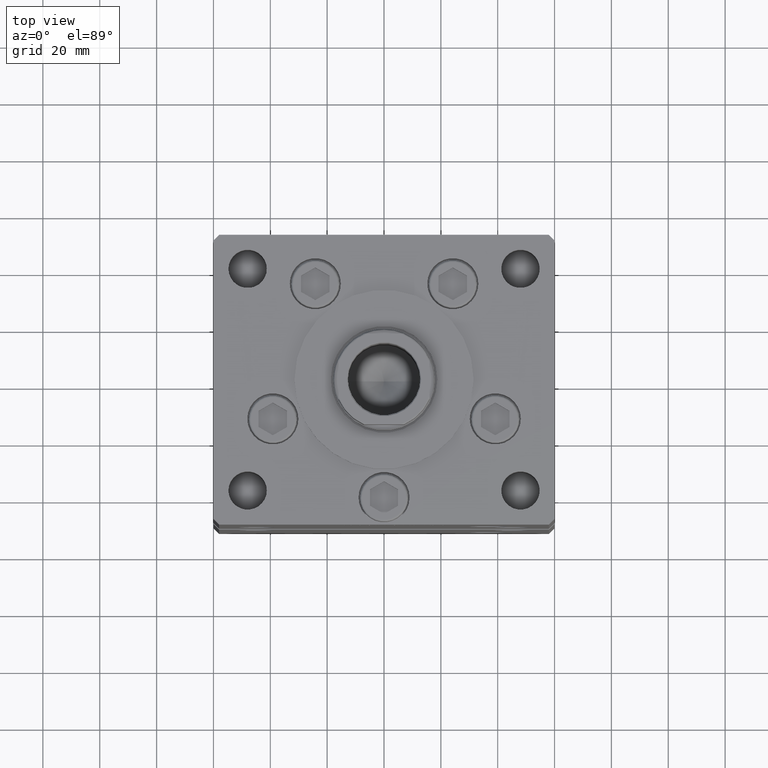
[diagram: clean part render]
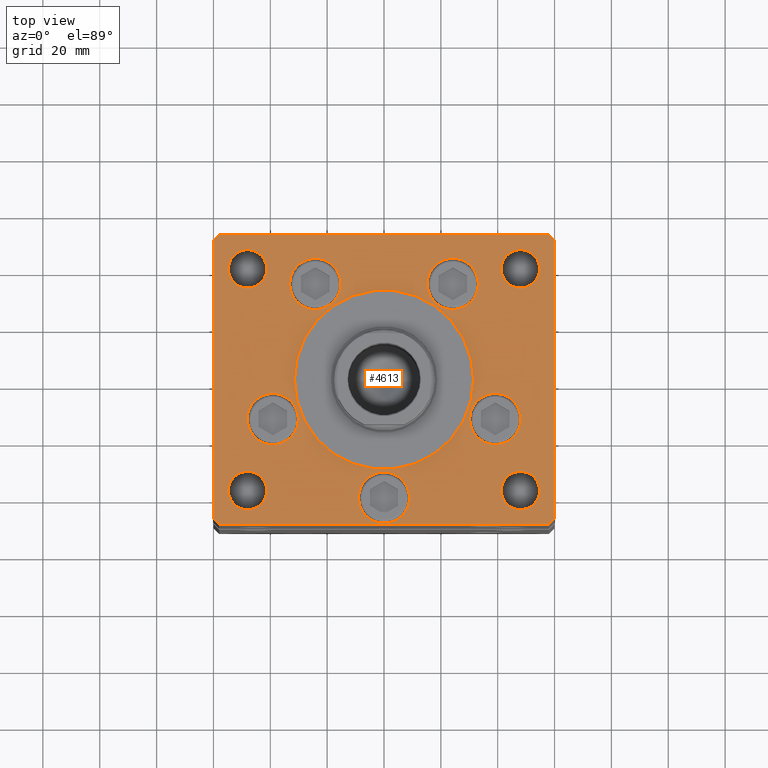
[diagram: same view with one face highlighted and labeled with its STEP entity id]
A machine part, top view. The second image highlights one B-rep face of the part: STEP entity #4613.
In plain terms, the highlighted planar face has unit normal (0, 0, 1).
Its self-contained STEP definition (entity closure, byte-faithful):
#27 = VECTOR ( 'NONE', #14591, 1000.000000000000114 ) ;
#181 = CARTESIAN_POINT ( 'NONE',  ( 60.00000000000001421, 49.00000000000002842, 0.000000000000000000 ) ) ;
#208 = DIRECTION ( 'NONE',  ( -0.000000000000000000, -0.000000000000000000, -1.000000000000000000 ) ) ;
#381 = DIRECTION ( 'NONE',  ( 0.000000000000000000, 0.000000000000000000, 1.000000000000000000 ) ) ;
#537 = CARTESIAN_POINT ( 'NONE',  ( 48.00000000000000000, 39.00000000000000000, 0.000000000000000000 ) ) ;
#765 = VECTOR ( 'NONE', #25288, 1000.000000000000000 ) ;
#964 = AXIS2_PLACEMENT_3D ( 'NONE', #23474, #27243, #22706 ) ;
#1248 = VERTEX_POINT ( 'NONE', #14520 ) ;
#1383 = CARTESIAN_POINT ( 'NONE',  ( -48.00000000000000000, 39.00000000000000711, 0.000000000000000000 ) ) ;
#1648 = DIRECTION ( 'NONE',  ( 1.000000000000000000, 0.000000000000000000, 0.000000000000000000 ) ) ;
#1738 = EDGE_CURVE ( 'NONE', #6328, #43750, #11886, .T. ) ;
#1817 = AXIS2_PLACEMENT_3D ( 'NONE', #15088, #27167, #39745 ) ;
#2166 = DIRECTION ( 'NONE',  ( 1.000000000000000000, 0.000000000000000000, 0.000000000000000000 ) ) ;
#2235 = DIRECTION ( 'NONE',  ( 1.000000000000000000, 0.000000000000000000, 0.000000000000000000 ) ) ;
#2573 = DIRECTION ( 'NONE',  ( 1.000000000000000000, 0.000000000000000000, 0.000000000000000000 ) ) ;
#2611 = DIRECTION ( 'NONE',  ( 0.000000000000000000, 0.000000000000000000, 1.000000000000000000 ) ) ;
#2787 = VERTEX_POINT ( 'NONE', #43143 ) ;
#2992 = EDGE_CURVE ( 'NONE', #33867, #47393, #37665, .T. ) ;
#3180 = VERTEX_POINT ( 'NONE', #31270 ) ;
#3598 = VERTEX_POINT ( 'NONE', #37267 ) ;
#3613 = EDGE_CURVE ( 'NONE', #26165, #24184, #16322, .T. ) ;
#3851 = EDGE_CURVE ( 'NONE', #7730, #45765, #46292, .T. ) ;
#3981 = DIRECTION ( 'NONE',  ( 1.000000000000000000, 0.000000000000000000, 0.000000000000000000 ) ) ;
#4077 = ORIENTED_EDGE ( 'NONE', *, *, #24268, .T. ) ;
#4111 = ORIENTED_EDGE ( 'NONE', *, *, #18809, .F. ) ;
#4331 = EDGE_CURVE ( 'NONE', #40238, #26209, #19608, .T. ) ;
#4400 = CARTESIAN_POINT ( 'NONE',  ( -58.00000000000000711, -51.00000000000002842, 0.000000000000000000 ) ) ;
#4613 = ADVANCED_FACE ( 'NONE', ( #31968, #20179, #16156, #39478, #7558, #19911, #48328, #7041, #27699, #11597, #31435 ), #35718, .T. ) ;
#4660 = ORIENTED_EDGE ( 'NONE', *, *, #5966, .F. ) ;
#4819 = DIRECTION ( 'NONE',  ( 0.7071067811865474617, 0.7071067811865474617, 0.000000000000000000 ) ) ;
#4916 = DIRECTION ( 'NONE',  ( 1.000000000000000000, 0.000000000000000000, 0.000000000000000000 ) ) ;
#5086 = CARTESIAN_POINT ( 'NONE',  ( 60.00000000000001421, -48.99999999999992895, 0.000000000000000000 ) ) ;
#5121 = EDGE_LOOP ( 'NONE', ( #33469, #12179, #51882, #16606, #46560, #34113, #12789, #44749 ) ) ;
#5966 = EDGE_CURVE ( 'NONE', #34673, #6267, #24967, .T. ) ;
#6220 = CARTESIAN_POINT ( 'NONE',  ( 60.00000000000001421, -48.99999999999992895, 0.000000000000000000 ) ) ;
#6267 = VERTEX_POINT ( 'NONE', #42792 ) ;
#6272 = EDGE_CURVE ( 'NONE', #26209, #3180, #10861, .T. ) ;
#6328 = VERTEX_POINT ( 'NONE', #40058 ) ;
#6482 = EDGE_LOOP ( 'NONE', ( #4660, #37126 ) ) ;
#6642 = AXIS2_PLACEMENT_3D ( 'NONE', #25524, #38374, #1648 ) ;
#7008 = DIRECTION ( 'NONE',  ( 0.000000000000000000, 1.000000000000000000, 0.000000000000000000 ) ) ;
#7041 = FACE_BOUND ( 'NONE', #32353, .T. ) ;
#7186 = DIRECTION ( 'NONE',  ( 1.000000000000000000, 0.000000000000000000, 0.000000000000000000 ) ) ;
#7276 = AXIS2_PLACEMENT_3D ( 'NONE', #18490, #19005, #7186 ) ;
#7313 = ORIENTED_EDGE ( 'NONE', *, *, #3851, .F. ) ;
#7324 = DIRECTION ( 'NONE',  ( -0.7071067811865536790, -0.7071067811865414665, 0.000000000000000000 ) ) ;
#7498 = CARTESIAN_POINT ( 'NONE',  ( 30.12657522565563539, -13.83333333333332682, 0.000000000000000000 ) ) ;
#7558 = FACE_BOUND ( 'NONE', #44476, .T. ) ;
#7730 = VERTEX_POINT ( 'NONE', #7498 ) ;
#7878 = VERTEX_POINT ( 'NONE', #14973 ) ;
#8289 = CARTESIAN_POINT ( 'NONE',  ( 48.00000000000000000, -39.00000000000001421, 0.000000000000000000 ) ) ;
#8450 = EDGE_CURVE ( 'NONE', #47393, #33867, #36966, .T. ) ;
#8547 = AXIS2_PLACEMENT_3D ( 'NONE', #18158, #47101, #38794 ) ;
#8870 = CARTESIAN_POINT ( 'NONE',  ( 31.50000000000000000, -3.081256486593065689E-15, 0.000000000000000000 ) ) ;
#8920 = CARTESIAN_POINT ( 'NONE',  ( 58.00000000000000000, 51.00000000000000711, 0.000000000000000000 ) ) ;
#9491 = ORIENTED_EDGE ( 'NONE', *, *, #3613, .F. ) ;
#9655 = DIRECTION ( 'NONE',  ( 0.000000000000000000, 0.000000000000000000, 1.000000000000000000 ) ) ;
#9674 = AXIS2_PLACEMENT_3D ( 'NONE', #35829, #11976, #40644 ) ;
#9701 = CARTESIAN_POINT ( 'NONE',  ( 48.00000000000000000, -39.00000000000001421, 0.000000000000000000 ) ) ;
#9743 = LINE ( 'NONE', #51027, #21548 ) ;
#9748 = ORIENTED_EDGE ( 'NONE', *, *, #22622, .F. ) ;
#9961 = ORIENTED_EDGE ( 'NONE', *, *, #52129, .F. ) ;
#10002 = ORIENTED_EDGE ( 'NONE', *, *, #38437, .F. ) ;
#10102 = CIRCLE ( 'NONE', #6642, 9.000000000000001776 ) ;
#10105 = AXIS2_PLACEMENT_3D ( 'NONE', #23398, #19636, #2235 ) ;
#10143 = CIRCLE ( 'NONE', #30582, 6.749999999999999112 ) ;
#10472 = DIRECTION ( 'NONE',  ( 0.000000000000000000, 0.000000000000000000, 1.000000000000000000 ) ) ;
#10861 = LINE ( 'NONE', #27490, #16394 ) ;
#10914 = VERTEX_POINT ( 'NONE', #28975 ) ;
#10920 = CARTESIAN_POINT ( 'NONE',  ( 0.000000000000000000, -6.938893903907228378E-15, 0.000000000000000000 ) ) ;
#11060 = ORIENTED_EDGE ( 'NONE', *, *, #46548, .F. ) ;
#11597 = FACE_OUTER_BOUND ( 'NONE', #5121, .T. ) ;
#11859 = CIRCLE ( 'NONE', #25573, 6.749999999999999112 ) ;
#11886 = LINE ( 'NONE', #28507, #19718 ) ;
#11976 = DIRECTION ( 'NONE',  ( 0.000000000000000000, 0.000000000000000000, 1.000000000000000000 ) ) ;
#12116 = AXIS2_PLACEMENT_3D ( 'NONE', #41374, #24250, #4916 ) ;
#12179 = ORIENTED_EDGE ( 'NONE', *, *, #42112, .T. ) ;
#12234 = CIRCLE ( 'NONE', #9674, 6.749999999999999112 ) ;
#12562 = CARTESIAN_POINT ( 'NONE',  ( 54.75000000000000000, -39.00000000000001421, 0.000000000000000000 ) ) ;
#12774 = CARTESIAN_POINT ( 'NONE',  ( -33.19288941894913592, 33.71874999999998579, 0.000000000000000000 ) ) ;
#12789 = ORIENTED_EDGE ( 'NONE', *, *, #1738, .T. ) ;
#12868 = DIRECTION ( 'NONE',  ( 1.000000000000000000, 0.000000000000000000, 0.000000000000000000 ) ) ;
#13270 = AXIS2_PLACEMENT_3D ( 'NONE', #39307, #43087, #2573 ) ;
#13472 = VECTOR ( 'NONE', #4819, 1000.000000000000114 ) ;
#13749 = AXIS2_PLACEMENT_3D ( 'NONE', #35028, #30752, #22461 ) ;
#14369 = CARTESIAN_POINT ( 'NONE',  ( -54.75000000000000000, 39.00000000000000711, 0.000000000000000000 ) ) ;
#14520 = CARTESIAN_POINT ( 'NONE',  ( -41.25000000000000000, -39.00000000000001421, 0.000000000000000000 ) ) ;
#14591 = DIRECTION ( 'NONE',  ( 0.7071067811865474617, -0.7071067811865474617, 0.000000000000000000 ) ) ;
#14635 = EDGE_LOOP ( 'NONE', ( #22041, #44819 ) ) ;
#14837 = CIRCLE ( 'NONE', #15673, 9.000000000000000000 ) ;
#14973 = CARTESIAN_POINT ( 'NONE',  ( -54.75000000000000000, -39.00000000000001421, 0.000000000000000000 ) ) ;
#15088 = CARTESIAN_POINT ( 'NONE',  ( 0.000000000000000000, 0.000000000000000000, 0.000000000000000000 ) ) ;
#15112 = CARTESIAN_POINT ( 'NONE',  ( -60.00000000000000000, -49.00000000000004263, 0.000000000000000000 ) ) ;
#15217 = CIRCLE ( 'NONE', #10105, 6.749999999999999112 ) ;
#15673 = AXIS2_PLACEMENT_3D ( 'NONE', #24511, #381, #36835 ) ;
#16068 = ORIENTED_EDGE ( 'NONE', *, *, #25977, .F. ) ;
#16156 = FACE_BOUND ( 'NONE', #14635, .T. ) ;
#16322 = CIRCLE ( 'NONE', #33451, 9.000000000000000000 ) ;
#16394 = VECTOR ( 'NONE', #34995, 1000.000000000000000 ) ;
#16440 = CARTESIAN_POINT ( 'NONE',  ( -30.12657522565563539, -13.83333333333332860, 0.000000000000000000 ) ) ;
#16606 = ORIENTED_EDGE ( 'NONE', *, *, #4331, .T. ) ;
#17184 = DIRECTION ( 'NONE',  ( 0.000000000000000000, 0.000000000000000000, 1.000000000000000000 ) ) ;
#17736 = DIRECTION ( 'NONE',  ( -1.000000000000000000, 0.000000000000000000, 0.000000000000000000 ) ) ;
#18048 = VECTOR ( 'NONE', #7008, 1000.000000000000000 ) ;
#18158 = CARTESIAN_POINT ( 'NONE',  ( 24.19288941894913592, 33.71874999999998579, 0.000000000000000000 ) ) ;
#18167 = AXIS2_PLACEMENT_3D ( 'NONE', #1383, #41314, #17736 ) ;
#18392 = VERTEX_POINT ( 'NONE', #47572 ) ;
#18490 = CARTESIAN_POINT ( 'NONE',  ( -24.19288941894913592, 33.71874999999998579, 0.000000000000000000 ) ) ;
#18809 = EDGE_CURVE ( 'NONE', #1248, #7878, #52615, .T. ) ;
#19005 = DIRECTION ( 'NONE',  ( 0.000000000000000000, 0.000000000000000000, 1.000000000000000000 ) ) ;
#19439 = LINE ( 'NONE', #4400, #20651 ) ;
#19608 = LINE ( 'NONE', #6220, #18048 ) ;
#19636 = DIRECTION ( 'NONE',  ( 0.000000000000000000, 0.000000000000000000, 1.000000000000000000 ) ) ;
#19718 = VECTOR ( 'NONE', #7324, 1000.000000000000000 ) ;
#19911 = FACE_BOUND ( 'NONE', #6482, .T. ) ;
#20179 = FACE_BOUND ( 'NONE', #29269, .T. ) ;
#20583 = CARTESIAN_POINT ( 'NONE',  ( -48.00000000000000000, 39.00000000000000711, 0.000000000000000000 ) ) ;
#20651 = VECTOR ( 'NONE', #37369, 1000.000000000000000 ) ;
#21467 = DIRECTION ( 'NONE',  ( 1.000000000000000000, 0.000000000000000000, 0.000000000000000000 ) ) ;
#21544 = CIRCLE ( 'NONE', #25835, 9.000000000000001776 ) ;
#21548 = VECTOR ( 'NONE', #34921, 1000.000000000000000 ) ;
#22041 = ORIENTED_EDGE ( 'NONE', *, *, #37441, .F. ) ;
#22278 = CIRCLE ( 'NONE', #8547, 9.000000000000001776 ) ;
#22461 = DIRECTION ( 'NONE',  ( 1.000000000000000000, 0.000000000000000000, 0.000000000000000000 ) ) ;
#22524 = CARTESIAN_POINT ( 'NONE',  ( -24.19288941894913592, 33.71874999999998579, 0.000000000000000000 ) ) ;
#22622 = EDGE_CURVE ( 'NONE', #2787, #31256, #24070, .T. ) ;
#22706 = DIRECTION ( 'NONE',  ( 1.000000000000000000, 0.000000000000000000, 0.000000000000000000 ) ) ;
#23398 = CARTESIAN_POINT ( 'NONE',  ( 48.00000000000000000, 39.00000000000000000, 0.000000000000000000 ) ) ;
#23474 = CARTESIAN_POINT ( 'NONE',  ( 0.000000000000000000, -41.50000000000000000, 0.000000000000000000 ) ) ;
#23630 = EDGE_LOOP ( 'NONE', ( #4111, #48059 ) ) ;
#23890 = EDGE_CURVE ( 'NONE', #32173, #35535, #15217, .T. ) ;
#23929 = ORIENTED_EDGE ( 'NONE', *, *, #2992, .T. ) ;
#24070 = CIRCLE ( 'NONE', #964, 9.000000000000000000 ) ;
#24184 = VERTEX_POINT ( 'NONE', #39149 ) ;
#24250 = DIRECTION ( 'NONE',  ( 0.000000000000000000, 0.000000000000000000, 1.000000000000000000 ) ) ;
#24268 = EDGE_CURVE ( 'NONE', #30925, #18392, #10143, .T. ) ;
#24511 = CARTESIAN_POINT ( 'NONE',  ( 0.000000000000000000, -41.50000000000000000, 0.000000000000000000 ) ) ;
#24843 = AXIS2_PLACEMENT_3D ( 'NONE', #20583, #208, #49268 ) ;
#24967 = CIRCLE ( 'NONE', #32648, 9.000000000000001776 ) ;
#24973 = EDGE_CURVE ( 'NONE', #18392, #30925, #11859, .T. ) ;
#25213 = CARTESIAN_POINT ( 'NONE',  ( 58.00000000000001421, -50.99999999999992184, 0.000000000000000000 ) ) ;
#25288 = DIRECTION ( 'NONE',  ( -1.000000000000000000, -2.392722035830078972E-16, 0.000000000000000000 ) ) ;
#25524 = CARTESIAN_POINT ( 'NONE',  ( 39.12657522565563539, -13.83333333333332860, 0.000000000000000000 ) ) ;
#25573 = AXIS2_PLACEMENT_3D ( 'NONE', #9701, #30604, #25800 ) ;
#25800 = DIRECTION ( 'NONE',  ( -1.000000000000000000, 0.000000000000000000, 0.000000000000000000 ) ) ;
#25835 = AXIS2_PLACEMENT_3D ( 'NONE', #37535, #17184, #21467 ) ;
#25977 = EDGE_CURVE ( 'NONE', #35535, #32173, #45145, .T. ) ;
#26039 = EDGE_CURVE ( 'NONE', #30202, #40238, #32970, .T. ) ;
#26165 = VERTEX_POINT ( 'NONE', #12774 ) ;
#26209 = VERTEX_POINT ( 'NONE', #181 ) ;
#26548 = DIRECTION ( 'NONE',  ( 1.000000000000000000, 0.000000000000000000, 0.000000000000000000 ) ) ;
#26686 = CIRCLE ( 'NONE', #29232, 31.50000000000000000 ) ;
#26856 = EDGE_LOOP ( 'NONE', ( #4077, #37022 ) ) ;
#27108 = EDGE_CURVE ( 'NONE', #45765, #7730, #10102, .T. ) ;
#27167 = DIRECTION ( 'NONE',  ( -0.000000000000000000, 0.000000000000000000, 1.000000000000000000 ) ) ;
#27243 = DIRECTION ( 'NONE',  ( 0.000000000000000000, 0.000000000000000000, 1.000000000000000000 ) ) ;
#27362 = VERTEX_POINT ( 'NONE', #33213 ) ;
#27448 = DIRECTION ( 'NONE',  ( 0.000000000000000000, 0.000000000000000000, 1.000000000000000000 ) ) ;
#27490 = CARTESIAN_POINT ( 'NONE',  ( 60.00000000000001421, 49.00000000000002842, 0.000000000000000000 ) ) ;
#27699 = FACE_BOUND ( 'NONE', #23630, .T. ) ;
#28507 = CARTESIAN_POINT ( 'NONE',  ( -57.99999999999998579, 50.99999999999997868, 0.000000000000000000 ) ) ;
#28634 = AXIS2_PLACEMENT_3D ( 'NONE', #43421, #40697, #3981 ) ;
#28975 = CARTESIAN_POINT ( 'NONE',  ( 15.19288941894913236, 33.71874999999998579, 0.000000000000000000 ) ) ;
#29232 = AXIS2_PLACEMENT_3D ( 'NONE', #10920, #2611, #30779 ) ;
#29269 = EDGE_LOOP ( 'NONE', ( #9961, #9491 ) ) ;
#29608 = EDGE_CURVE ( 'NONE', #3180, #6328, #45661, .T. ) ;
#30108 = CIRCLE ( 'NONE', #12116, 9.000000000000001776 ) ;
#30164 = EDGE_LOOP ( 'NONE', ( #23929, #48050 ) ) ;
#30202 = VERTEX_POINT ( 'NONE', #49474 ) ;
#30582 = AXIS2_PLACEMENT_3D ( 'NONE', #8289, #32163, #48258 ) ;
#30604 = DIRECTION ( 'NONE',  ( -0.000000000000000000, -0.000000000000000000, -1.000000000000000000 ) ) ;
#30752 = DIRECTION ( 'NONE',  ( 0.000000000000000000, 0.000000000000000000, 1.000000000000000000 ) ) ;
#30779 = DIRECTION ( 'NONE',  ( 1.000000000000000000, 0.000000000000000000, 0.000000000000000000 ) ) ;
#30925 = VERTEX_POINT ( 'NONE', #12562 ) ;
#31256 = VERTEX_POINT ( 'NONE', #36884 ) ;
#31270 = CARTESIAN_POINT ( 'NONE',  ( 58.00000000000000000, 51.00000000000000711, 0.000000000000000000 ) ) ;
#31435 = FACE_BOUND ( 'NONE', #26856, .T. ) ;
#31968 = FACE_BOUND ( 'NONE', #35974, .T. ) ;
#32163 = DIRECTION ( 'NONE',  ( -0.000000000000000000, -0.000000000000000000, -1.000000000000000000 ) ) ;
#32173 = VERTEX_POINT ( 'NONE', #42769 ) ;
#32283 = VERTEX_POINT ( 'NONE', #40298 ) ;
#32353 = EDGE_LOOP ( 'NONE', ( #16068, #50753 ) ) ;
#32648 = AXIS2_PLACEMENT_3D ( 'NONE', #34861, #10472, #2166 ) ;
#32970 = LINE ( 'NONE', #25213, #13472 ) ;
#33213 = CARTESIAN_POINT ( 'NONE',  ( -58.00000000000000711, -51.00000000000002842, 0.000000000000000000 ) ) ;
#33451 = AXIS2_PLACEMENT_3D ( 'NONE', #22524, #9655, #26548 ) ;
#33469 = ORIENTED_EDGE ( 'NONE', *, *, #34601, .T. ) ;
#33584 = ORIENTED_EDGE ( 'NONE', *, *, #52509, .F. ) ;
#33867 = VERTEX_POINT ( 'NONE', #47032 ) ;
#34113 = ORIENTED_EDGE ( 'NONE', *, *, #29608, .T. ) ;
#34410 = EDGE_CURVE ( 'NONE', #10914, #3598, #22278, .T. ) ;
#34601 = EDGE_CURVE ( 'NONE', #45996, #27362, #51839, .T. ) ;
#34673 = VERTEX_POINT ( 'NONE', #16440 ) ;
#34861 = CARTESIAN_POINT ( 'NONE',  ( -39.12657522565563539, -13.83333333333332860, 0.000000000000000000 ) ) ;
#34921 = DIRECTION ( 'NONE',  ( 0.000000000000000000, -1.000000000000000000, 0.000000000000000000 ) ) ;
#34995 = DIRECTION ( 'NONE',  ( -0.7071067811865536790, 0.7071067811865414665, 0.000000000000000000 ) ) ;
#35028 = CARTESIAN_POINT ( 'NONE',  ( 39.12657522565563539, -13.83333333333332860, 0.000000000000000000 ) ) ;
#35442 = CARTESIAN_POINT ( 'NONE',  ( -60.00000000000000000, 49.00000000000000000, 0.000000000000000000 ) ) ;
#35535 = VERTEX_POINT ( 'NONE', #48616 ) ;
#35718 = PLANE ( 'NONE',  #1817 ) ;
#35829 = CARTESIAN_POINT ( 'NONE',  ( -48.00000000000000000, -39.00000000000001421, 0.000000000000000000 ) ) ;
#35974 = EDGE_LOOP ( 'NONE', ( #10002, #33584 ) ) ;
#36380 = CIRCLE ( 'NONE', #13270, 31.50000000000000000 ) ;
#36835 = DIRECTION ( 'NONE',  ( 1.000000000000000000, 0.000000000000000000, 0.000000000000000000 ) ) ;
#36884 = CARTESIAN_POINT ( 'NONE',  ( 9.000000000000000000, -41.50000000000000000, 0.000000000000000000 ) ) ;
#36966 = CIRCLE ( 'NONE', #18167, 6.749999999999999112 ) ;
#37022 = ORIENTED_EDGE ( 'NONE', *, *, #24973, .T. ) ;
#37126 = ORIENTED_EDGE ( 'NONE', *, *, #41117, .F. ) ;
#37267 = CARTESIAN_POINT ( 'NONE',  ( 33.19288941894913592, 33.71874999999998579, 0.000000000000000000 ) ) ;
#37369 = DIRECTION ( 'NONE',  ( 1.000000000000000000, 9.570888143320313916E-16, 0.000000000000000000 ) ) ;
#37441 = EDGE_CURVE ( 'NONE', #3598, #10914, #30108, .T. ) ;
#37535 = CARTESIAN_POINT ( 'NONE',  ( -39.12657522565563539, -13.83333333333332860, 0.000000000000000000 ) ) ;
#37621 = EDGE_CURVE ( 'NONE', #43750, #45996, #9743, .T. ) ;
#37665 = CIRCLE ( 'NONE', #24843, 6.749999999999999112 ) ;
#38096 = CARTESIAN_POINT ( 'NONE',  ( 48.12657522565563539, -13.83333333333332860, 0.000000000000000000 ) ) ;
#38374 = DIRECTION ( 'NONE',  ( 0.000000000000000000, 0.000000000000000000, 1.000000000000000000 ) ) ;
#38437 = EDGE_CURVE ( 'NONE', #32283, #48110, #26686, .T. ) ;
#38794 = DIRECTION ( 'NONE',  ( 1.000000000000000000, 0.000000000000000000, 0.000000000000000000 ) ) ;
#38827 = CARTESIAN_POINT ( 'NONE',  ( -60.00000000000000000, -49.00000000000004263, 0.000000000000000000 ) ) ;
#39149 = CARTESIAN_POINT ( 'NONE',  ( -15.19288941894913592, 33.71874999999998579, 0.000000000000000000 ) ) ;
#39307 = CARTESIAN_POINT ( 'NONE',  ( 0.000000000000000000, -6.938893903907228378E-15, 0.000000000000000000 ) ) ;
#39478 = FACE_BOUND ( 'NONE', #41326, .T. ) ;
#39745 = DIRECTION ( 'NONE',  ( 1.000000000000000000, 0.000000000000000000, 0.000000000000000000 ) ) ;
#39803 = CIRCLE ( 'NONE', #7276, 9.000000000000000000 ) ;
#40058 = CARTESIAN_POINT ( 'NONE',  ( -57.99999999999998579, 50.99999999999997868, 0.000000000000000000 ) ) ;
#40238 = VERTEX_POINT ( 'NONE', #5086 ) ;
#40298 = CARTESIAN_POINT ( 'NONE',  ( -31.50000000000000000, -6.938893903907228378E-15, 0.000000000000000000 ) ) ;
#40644 = DIRECTION ( 'NONE',  ( 1.000000000000000000, 0.000000000000000000, 0.000000000000000000 ) ) ;
#40697 = DIRECTION ( 'NONE',  ( 0.000000000000000000, 0.000000000000000000, 1.000000000000000000 ) ) ;
#41117 = EDGE_CURVE ( 'NONE', #6267, #34673, #21544, .T. ) ;
#41314 = DIRECTION ( 'NONE',  ( -0.000000000000000000, -0.000000000000000000, -1.000000000000000000 ) ) ;
#41326 = EDGE_LOOP ( 'NONE', ( #51070, #7313 ) ) ;
#41374 = CARTESIAN_POINT ( 'NONE',  ( 24.19288941894913592, 33.71874999999998579, 0.000000000000000000 ) ) ;
#42112 = EDGE_CURVE ( 'NONE', #27362, #30202, #19439, .T. ) ;
#42769 = CARTESIAN_POINT ( 'NONE',  ( 41.25000000000000000, 39.00000000000000000, 0.000000000000000000 ) ) ;
#42792 = CARTESIAN_POINT ( 'NONE',  ( -48.12657522565563539, -13.83333333333332682, 0.000000000000000000 ) ) ;
#43087 = DIRECTION ( 'NONE',  ( 0.000000000000000000, 0.000000000000000000, 1.000000000000000000 ) ) ;
#43143 = CARTESIAN_POINT ( 'NONE',  ( -9.000000000000000000, -41.50000000000000000, 0.000000000000000000 ) ) ;
#43421 = CARTESIAN_POINT ( 'NONE',  ( -48.00000000000000000, -39.00000000000001421, 0.000000000000000000 ) ) ;
#43750 = VERTEX_POINT ( 'NONE', #35442 ) ;
#44476 = EDGE_LOOP ( 'NONE', ( #11060, #9748 ) ) ;
#44749 = ORIENTED_EDGE ( 'NONE', *, *, #37621, .T. ) ;
#44819 = ORIENTED_EDGE ( 'NONE', *, *, #34410, .F. ) ;
#45145 = CIRCLE ( 'NONE', #49429, 6.749999999999999112 ) ;
#45314 = EDGE_CURVE ( 'NONE', #7878, #1248, #12234, .T. ) ;
#45661 = LINE ( 'NONE', #8920, #765 ) ;
#45765 = VERTEX_POINT ( 'NONE', #38096 ) ;
#45996 = VERTEX_POINT ( 'NONE', #38827 ) ;
#46292 = CIRCLE ( 'NONE', #13749, 9.000000000000001776 ) ;
#46548 = EDGE_CURVE ( 'NONE', #31256, #2787, #14837, .T. ) ;
#46560 = ORIENTED_EDGE ( 'NONE', *, *, #6272, .T. ) ;
#47032 = CARTESIAN_POINT ( 'NONE',  ( -41.25000000000000000, 39.00000000000000711, 0.000000000000000000 ) ) ;
#47101 = DIRECTION ( 'NONE',  ( 0.000000000000000000, 0.000000000000000000, 1.000000000000000000 ) ) ;
#47393 = VERTEX_POINT ( 'NONE', #14369 ) ;
#47572 = CARTESIAN_POINT ( 'NONE',  ( 41.25000000000000000, -39.00000000000001421, 0.000000000000000000 ) ) ;
#48050 = ORIENTED_EDGE ( 'NONE', *, *, #8450, .T. ) ;
#48059 = ORIENTED_EDGE ( 'NONE', *, *, #45314, .F. ) ;
#48110 = VERTEX_POINT ( 'NONE', #8870 ) ;
#48258 = DIRECTION ( 'NONE',  ( -1.000000000000000000, 0.000000000000000000, 0.000000000000000000 ) ) ;
#48328 = FACE_BOUND ( 'NONE', #30164, .T. ) ;
#48616 = CARTESIAN_POINT ( 'NONE',  ( 54.75000000000000000, 39.00000000000000000, 0.000000000000000000 ) ) ;
#49268 = DIRECTION ( 'NONE',  ( -1.000000000000000000, 0.000000000000000000, 0.000000000000000000 ) ) ;
#49429 = AXIS2_PLACEMENT_3D ( 'NONE', #537, #27448, #12868 ) ;
#49474 = CARTESIAN_POINT ( 'NONE',  ( 58.00000000000001421, -50.99999999999992184, 0.000000000000000000 ) ) ;
#50753 = ORIENTED_EDGE ( 'NONE', *, *, #23890, .F. ) ;
#51027 = CARTESIAN_POINT ( 'NONE',  ( -60.00000000000000000, 49.00000000000000000, 0.000000000000000000 ) ) ;
#51070 = ORIENTED_EDGE ( 'NONE', *, *, #27108, .F. ) ;
#51839 = LINE ( 'NONE', #15112, #27 ) ;
#51882 = ORIENTED_EDGE ( 'NONE', *, *, #26039, .T. ) ;
#52129 = EDGE_CURVE ( 'NONE', #24184, #26165, #39803, .T. ) ;
#52509 = EDGE_CURVE ( 'NONE', #48110, #32283, #36380, .T. ) ;
#52615 = CIRCLE ( 'NONE', #28634, 6.749999999999999112 ) ;